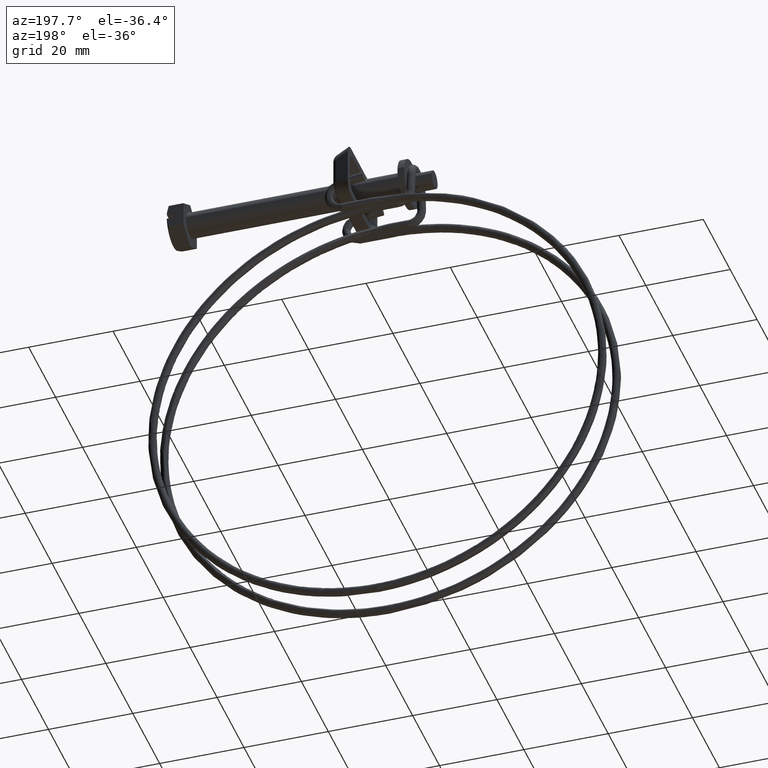
[diagram: clean part render]
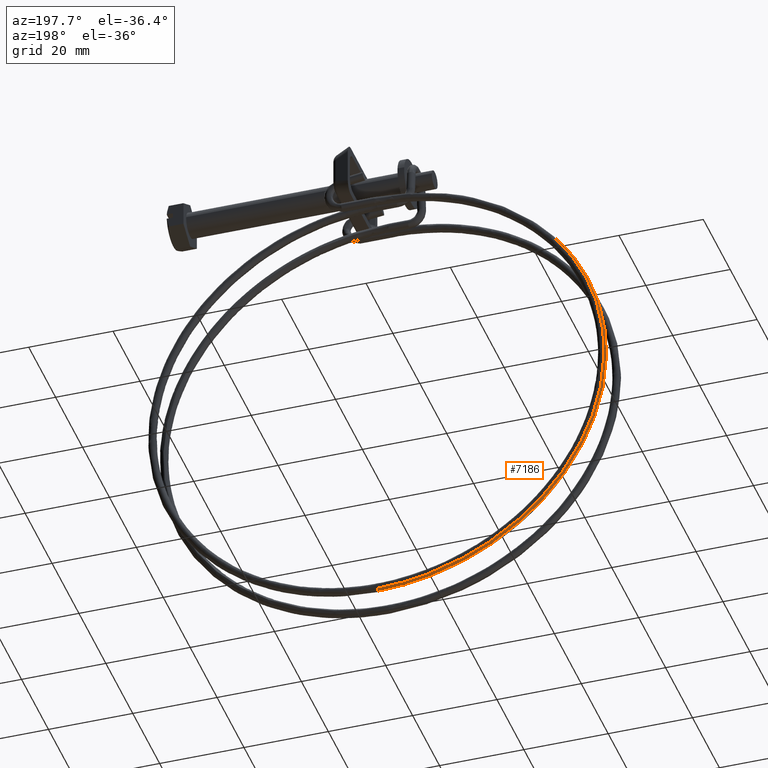
[diagram: same view with one face highlighted and labeled with its STEP entity id]
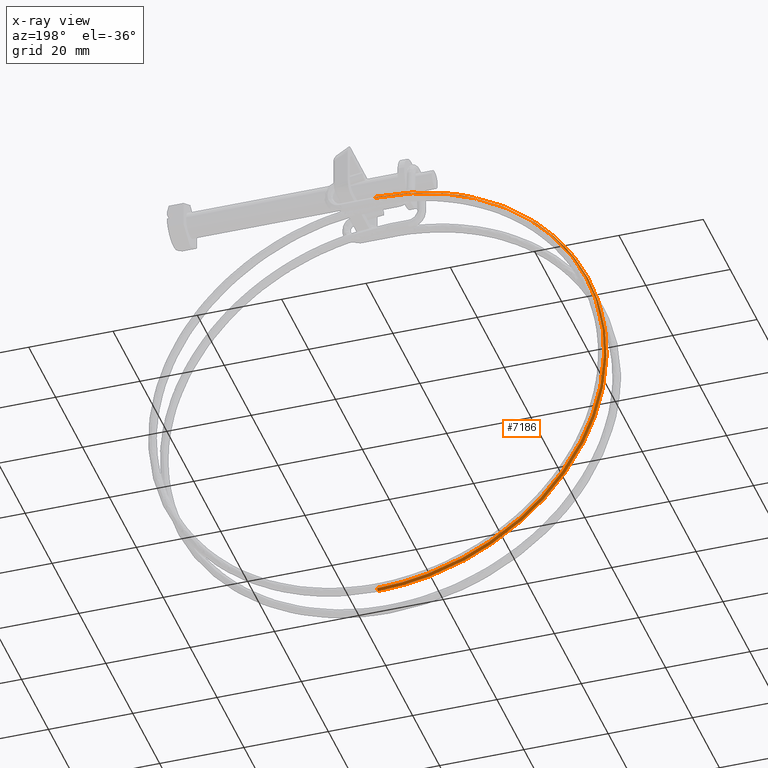
[diagram: x-ray of the same camera — body ghosted, the highlighted face saturated]
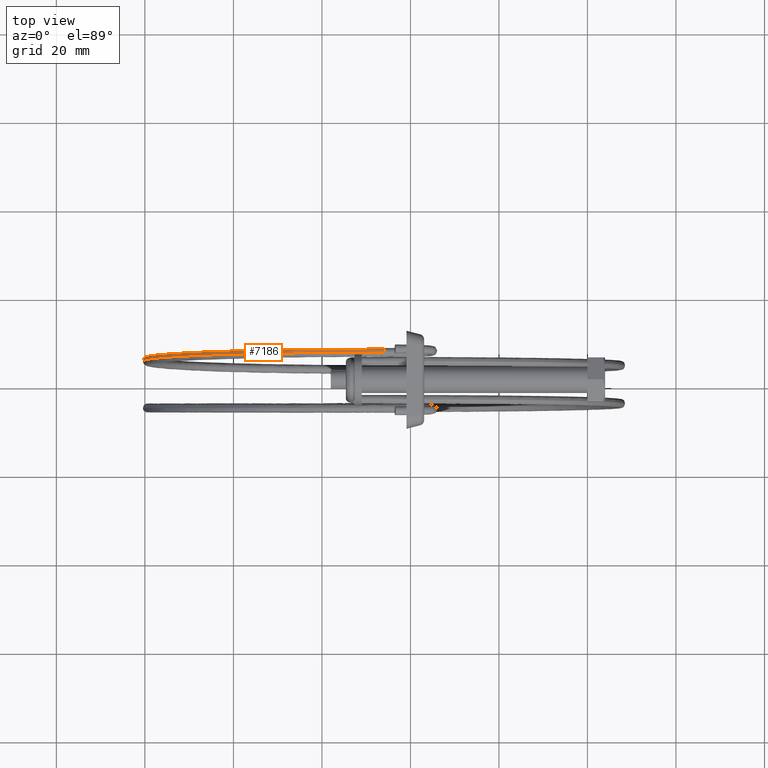
[diagram: same view with one face highlighted and labeled with its STEP entity id]
A machine part, auxiliary view. The second image highlights one B-rep face of the part: STEP entity #7186.
The next image is the same camera in x-ray: the body ghosted, the highlighted face saturated — about 0% of this face is hidden behind the body in this view.
A second angle (top view) of the same face is appended — the face is thin or edge-on in the first view.
In plain terms, the highlighted face is a freeform B-spline surface patch.
Its self-contained STEP definition (entity closure, byte-faithful):
#4404=CARTESIAN_POINT('',(-45.950000000001282,6.347558764410691,-6.850706005921239));
#4405=VERTEX_POINT('',#4404);
#4482=CARTESIAN_POINT('',(-45.950000000001268,7.064145850062413,-7.193325013423003));
#4483=VERTEX_POINT('',#4482);
#4495=CARTESIAN_POINT('',(-45.950000000001282,6.347558764410691,-6.850706005921239));
#4496=CARTESIAN_POINT('',(-45.950000000001253,6.609173470303219,-6.860537847713438));
#4497=CARTESIAN_POINT('',(-45.950000000001253,6.865129567064466,-6.978006706599688));
#4498=CARTESIAN_POINT('',(-45.950000000001253,7.050288541218412,-7.177626953036016));
#4499=CARTESIAN_POINT('',(-45.950000000001253,7.057282315947013,-7.185420554646336));
#4500=CARTESIAN_POINT('',(-45.950000000001268,7.064145850062413,-7.193325013423003));
#4501=B_SPLINE_CURVE_WITH_KNOTS('',3,(#4495,#4496,#4497,#4498,#4499,#4500),.UNSPECIFIED.,.F.,.U.,(4,2,4),(0.0,0.125000000000000,0.130000344779918),.UNSPECIFIED.);
#4502=EDGE_CURVE('',#4405,#4483,#4501,.T.);
#6149=CARTESIAN_POINT('',(-45.949999999998703,4.300002000001980,-115.850001000000010));
#6150=VERTEX_POINT('',#6149);
#6158=CARTESIAN_POINT('',(-45.949999999998703,5.028950952946322,-115.534536709492700));
#6159=VERTEX_POINT('',#6158);
#6160=CARTESIAN_POINT('',(-45.949999999998703,4.300002000001980,-115.850001000000010));
#6161=CARTESIAN_POINT('',(-45.949999999998703,4.561801387801131,-115.850001000000010));
#6162=CARTESIAN_POINT('',(-45.949999999998703,4.821988658765260,-115.742227903609600));
#6163=CARTESIAN_POINT('',(-45.949999999998703,5.014513920712590,-115.549702641662190));
#6164=CARTESIAN_POINT('',(-45.949999999998703,5.021795293809616,-115.542177383844800));
#6165=CARTESIAN_POINT('',(-45.949999999998703,5.028950952946322,-115.534536709492700));
#6166=B_SPLINE_CURVE_WITH_KNOTS('',3,(#6160,#6161,#6162,#6163,#6164,#6165),.UNSPECIFIED.,.F.,.U.,(4,2,4),(0.0,0.125000000000000,0.130000225952701),.UNSPECIFIED.);
#6167=EDGE_CURVE('',#6150,#6159,#6166,.T.);
#7075=CARTESIAN_POINT('',(-45.950000000001268,7.064145850062413,-7.193325013423003));
#7076=CARTESIAN_POINT('',(-53.042240930008461,7.064412214306067,-7.193358361270424));
#7077=CARTESIAN_POINT('',(-60.129318017260459,7.037659492227878,-8.603299167272665));
#7078=CARTESIAN_POINT('',(-73.231725198278568,6.935707968914222,-14.030568650844071));
#7079=CARTESIAN_POINT('',(-79.240741991538457,6.860283017147794,-18.045727283927931));
#7080=CARTESIAN_POINT('',(-89.268742537910668,6.671904439796199,-28.073839382627700));
#7081=CARTESIAN_POINT('',(-93.283783373378355,6.559024927740127,-34.082847499326917));
#7082=CARTESIAN_POINT('',(-98.710841336703311,6.312899350635888,-47.185053237232282));
#7083=CARTESIAN_POINT('',(-100.120725091893700,6.179750085796863,-54.273097813440756));
#7084=CARTESIAN_POINT('',(-100.120725091893700,5.913346792975029,-68.454763909477577));
#7085=CARTESIAN_POINT('',(-98.710841336799547,5.780197528134327,-75.542808485588395));
#7086=CARTESIAN_POINT('',(-93.283783373280215,5.534071951033450,-88.645014223688563));
#7087=CARTESIAN_POINT('',(-89.268742537888727,5.421192438987443,-94.654022340239948));
#7088=CARTESIAN_POINT('',(-79.240741991556703,5.232813861612376,-104.682134439039800));
#7089=CARTESIAN_POINT('',(-73.231725198114177,5.157388909857941,-108.697293072129700));
#7090=CARTESIAN_POINT('',(-60.129318017419919,5.055437386543807,-114.124562555587400));
#7091=CARTESIAN_POINT('',(-53.042240966163533,5.028951582324261,-115.534536717909500));
#7092=CARTESIAN_POINT('',(-45.949999999998703,5.028950952946322,-115.534536709492700));
#7093=B_SPLINE_CURVE_WITH_KNOTS('',3,(#7075,#7076,#7077,#7078,#7079,#7080,#7081,#7082,#7083,#7084,#7085,#7086,#7087,#7088,#7089,#7090,#7091,#7092),.UNSPECIFIED.,.F.,.U.,(4,2,2,2,2,2,2,2,4),(0.064782648744768,0.123234838731776,0.181687028718784,0.240139218705792,0.298591408692800,0.357043598679808,0.415495788666816,0.473947978653824,0.532400168640832),.UNSPECIFIED.);
#7094=EDGE_CURVE('',#4483,#6159,#7093,.T.);
#7100=CARTESIAN_POINT('',(-45.950000000001282,6.347558764410691,-6.850706005921239));
#7101=CARTESIAN_POINT('',(-53.085335364026953,6.347825908585415,-6.850740158305275));
#7102=CARTESIAN_POINT('',(-60.215475190158649,6.320911446655495,-8.269248357046157));
#7103=CARTESIAN_POINT('',(-73.397490017437889,6.218340497674046,-13.729492955346210));
#7104=CARTESIAN_POINT('',(-79.443013155789302,6.142457311001900,-17.769045716265200));
#7105=CARTESIAN_POINT('',(-89.531930600160905,5.952934415638835,-27.858075564566299));
#7106=CARTESIAN_POINT('',(-93.571358272870498,5.839369275139715,-33.903583100234151));
#7107=CARTESIAN_POINT('',(-99.031377787345363,5.591748868355905,-47.085366071543604));
#7108=CARTESIAN_POINT('',(-100.449823607695290,5.457790987790499,-54.216457292640847));
#7109=CARTESIAN_POINT('',(-100.449823607695290,5.189769833553505,-68.484250214351647));
#7110=CARTESIAN_POINT('',(-99.031377787441599,5.055811952992656,-75.615341435327096));
#7111=CARTESIAN_POINT('',(-93.571358272772400,4.808191546199740,-88.797124406879547));
#7112=CARTESIAN_POINT('',(-89.531930600160749,4.694626405713718,-94.842631942448008));
#7113=CARTESIAN_POINT('',(-79.443013155785749,4.505103510333572,-104.931661790704000));
#7114=CARTESIAN_POINT('',(-73.397490017176693,4.429220323668722,-108.971214551679690));
#7115=CARTESIAN_POINT('',(-60.215475190414850,4.326649374689795,-114.431459149909800));
#7116=CARTESIAN_POINT('',(-53.085335400369651,4.300002633244238,-115.850001000048290));
#7117=CARTESIAN_POINT('',(-45.949999999998703,4.300002000001980,-115.850001000000010));
#7118=B_SPLINE_CURVE_WITH_KNOTS('',3,(#7100,#7101,#7102,#7103,#7104,#7105,#7106,#7107,#7108,#7109,#7110,#7111,#7112,#7113,#7114,#7115,#7116,#7117),.UNSPECIFIED.,.F.,.U.,(4,2,2,2,2,2,2,2,4),(0.064782648744768,0.123234838731776,0.181687028718784,0.240139218705792,0.298591408692800,0.357043598679808,0.415495788666816,0.473947978653824,0.532400168640832),.UNSPECIFIED.);
#7119=EDGE_CURVE('',#4405,#6150,#7118,.T.);
#7127=CARTESIAN_POINT('',(-45.093758570124550,6.343445489884718,-6.850549083779748));
#7128=CARTESIAN_POINT('',(-45.093821366654780,6.618305322939599,-6.859709353937331));
#7129=CARTESIAN_POINT('',(-45.095754563023789,6.887337016772939,-6.987811573152330));
#7130=CARTESIAN_POINT('',(-45.098978761668782,7.066790327369565,-7.196403686027725));
#7131=CARTESIAN_POINT('',(-45.379168389904450,6.343435300893884,-6.851639819885003));
#7132=CARTESIAN_POINT('',(-45.379210254553492,6.618295135078475,-6.860800009998474));
#7133=CARTESIAN_POINT('',(-45.380499061232648,6.887326863668026,-6.988899765059593));
#7134=CARTESIAN_POINT('',(-45.382648542172461,7.066780232137148,-7.197487768209125));
#7135=CARTESIAN_POINT('',(-52.799505509846391,6.344786761364309,-6.793799395383242));
#7136=CARTESIAN_POINT('',(-52.799003169139318,6.619646506258393,-6.802963826760919));
#7137=CARTESIAN_POINT('',(-52.783538569246190,6.888675485509121,-6.931194149586115));
#7138=CARTESIAN_POINT('',(-52.757746599553251,7.068124266186024,-7.139999914831549));
#7139=CARTESIAN_POINT('',(-67.348790601808645,6.290083540828891,-9.688025745170988));
#7140=CARTESIAN_POINT('',(-67.347221225291463,6.564947285376404,-9.696977907453746));
#7141=CARTESIAN_POINT('',(-67.298907840484276,6.834099394913120,-9.818673508705837));
#7142=CARTESIAN_POINT('',(-67.218330433684343,7.013753536230760,-10.016580618447600));
#7143=CARTESIAN_POINT('',(-85.490848874300724,6.062475274603315,-21.810364674362759));
#7144=CARTESIAN_POINT('',(-85.487949186077302,6.337355713897286,-21.818427897754159));
#7145=CARTESIAN_POINT('',(-85.398682046868487,6.607021772399639,-21.912757442452090));
#7146=CARTESIAN_POINT('',(-85.249801677033446,6.787533080439776,-22.065023248566579));
#7147=CARTESIAN_POINT('',(-97.612724997372638,5.721679535555526,-39.951247757330982));
#7148=CARTESIAN_POINT('',(-97.608936648419785,5.996584959165277,-39.957981005498091));
#7149=CARTESIAN_POINT('',(-97.492312015784819,6.267020161885681,-40.011367153942942));
#7150=CARTESIAN_POINT('',(-97.297804623809427,6.448814254294240,-40.095347272517913));
#7151=CARTESIAN_POINT('',(-101.868457206656000,5.319697900892636,-61.350270299969161));
#7152=CARTESIAN_POINT('',(-101.864356918351400,5.594632790405954,-61.355434965158118));
#7153=CARTESIAN_POINT('',(-101.738129206815400,5.865975103401718,-61.360532158234918));
#7154=CARTESIAN_POINT('',(-101.527605731606900,6.049282080779411,-61.363975613519031));
#7155=CARTESIAN_POINT('',(-97.612711013079448,4.917716647253660,-82.749272559509407));
#7156=CARTESIAN_POINT('',(-97.608922665089707,5.192681002644414,-82.752868643178047));
#7157=CARTESIAN_POINT('',(-97.492298062010107,5.464930425062283,-82.709676926167987));
#7158=CARTESIAN_POINT('',(-97.297790719338167,5.649750285990883,-82.632583793664011));
#7159=CARTESIAN_POINT('',(-85.490851577568165,4.576938556423655,-100.890198289699500));
#7160=CARTESIAN_POINT('',(-85.487951889158850,4.851927895514676,-100.892464395210100));
#7161=CARTESIAN_POINT('',(-85.398684744218158,5.124946443275823,-100.808329184299300));
#7162=CARTESIAN_POINT('',(-85.249804364853659,5.311049056925180,-100.662950201259090));
#7163=CARTESIAN_POINT('',(-67.348789671525736,4.349220019159609,-113.012514590699000));
#7164=CARTESIAN_POINT('',(-67.347220295071537,4.624226057000801,-113.013891758145600));
#7165=CARTESIAN_POINT('',(-67.298906912269032,4.897758676760786,-112.902390555827790));
#7166=CARTESIAN_POINT('',(-67.218329508746749,5.084718663326766,-112.711370378822490));
#7167=CARTESIAN_POINT('',(-52.799505727852477,4.294851793750947,-115.906785719599800));
#7168=CARTESIAN_POINT('',(-52.799003387132203,4.569861819071114,-115.907950617126900));
#7169=CARTESIAN_POINT('',(-52.783538786782103,4.843517194849119,-115.789914549017000));
#7170=CARTESIAN_POINT('',(-52.757746816287792,5.030681914822675,-115.587995472642210));
#7171=CARTESIAN_POINT('',(-45.379168386939497,4.295938336126566,-115.848911558261510));
#7172=CARTESIAN_POINT('',(-45.379210251588653,4.570948281780854,-115.850080697588990));
#7173=CARTESIAN_POINT('',(-45.380499058269102,4.844601204139823,-115.732175307502500));
#7174=CARTESIAN_POINT('',(-45.382648539222942,5.031761832249178,-115.530474179821790));
#7175=CARTESIAN_POINT('',(-45.093758565761860,4.295917846555716,-115.850000999999810));
#7176=CARTESIAN_POINT('',(-45.093821362292211,4.570927793713873,-115.851170059303600));
#7177=CARTESIAN_POINT('',(-45.095754558663238,4.844580762335711,-115.733262209309600));
#7178=CARTESIAN_POINT('',(-45.098978757328901,5.031741467601296,-115.531556979094200));
#7179=B_SPLINE_SURFACE_WITH_KNOTS('',3,3,((#7127,#7131,#7135,#7139,#7143,#7147,#7151,#7155,#7159,#7163,#7167,#7171,#7175),(#7128,#7132,#7136,#7140,#7144,#7148,#7152,#7156,#7160,#7164,#7168,#7172,#7176),(#7129,#7133,#7137,#7141,#7145,#7149,#7153,#7157,#7161,#7165,#7169,#7173,#7177),(#7130,#7134,#7138,#7142,#7146,#7150,#7154,#7158,#7162,#7166,#7170,#7174,#7178)),.UNSPECIFIED.,.F.,.F.,.U.,(4,4),(4,1,1,1,1,1,1,1,1,1,4),(0.0,0.825542852463344),(0.0,0.856235712478030,22.262129002845221,43.668022293212381,65.073915583579762,86.479808873946936,107.885702164314100,129.291595454681300,150.697488745048500,172.103382035415790,172.959617747892510),.UNSPECIFIED.);
#7180=ORIENTED_EDGE('',*,*,#6167,.F.);
#7181=ORIENTED_EDGE('',*,*,#7119,.F.);
#7182=ORIENTED_EDGE('',*,*,#4502,.T.);
#7183=ORIENTED_EDGE('',*,*,#7094,.T.);
#7184=EDGE_LOOP('',(#7180,#7181,#7182,#7183));
#7185=FACE_OUTER_BOUND('',#7184,.T.);
#7186=ADVANCED_FACE('',(#7185),#7179,.T.);